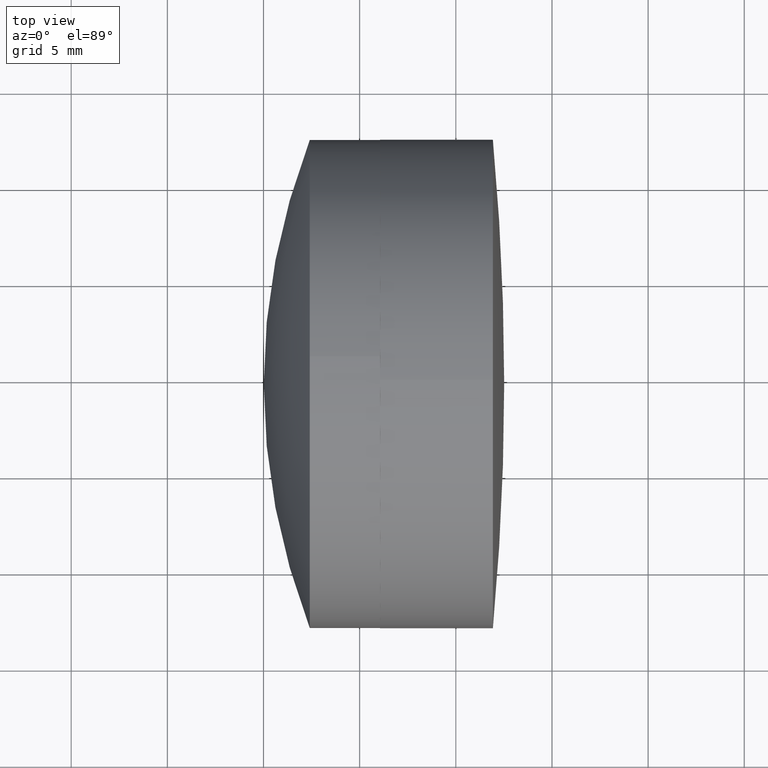
[diagram: clean part render]
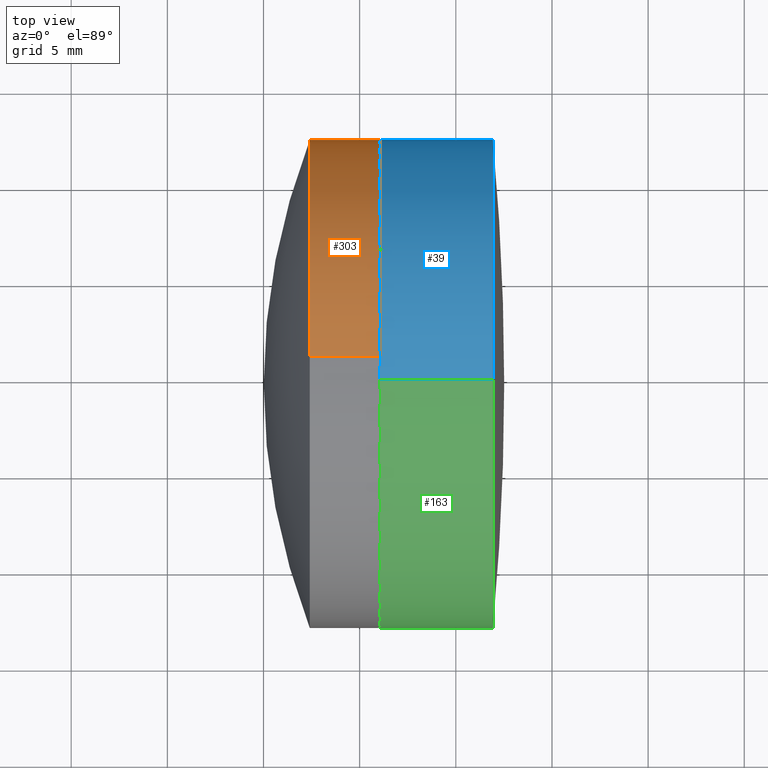
[diagram: same view with three faces highlighted in distinct colors, each labeled with its STEP entity id]
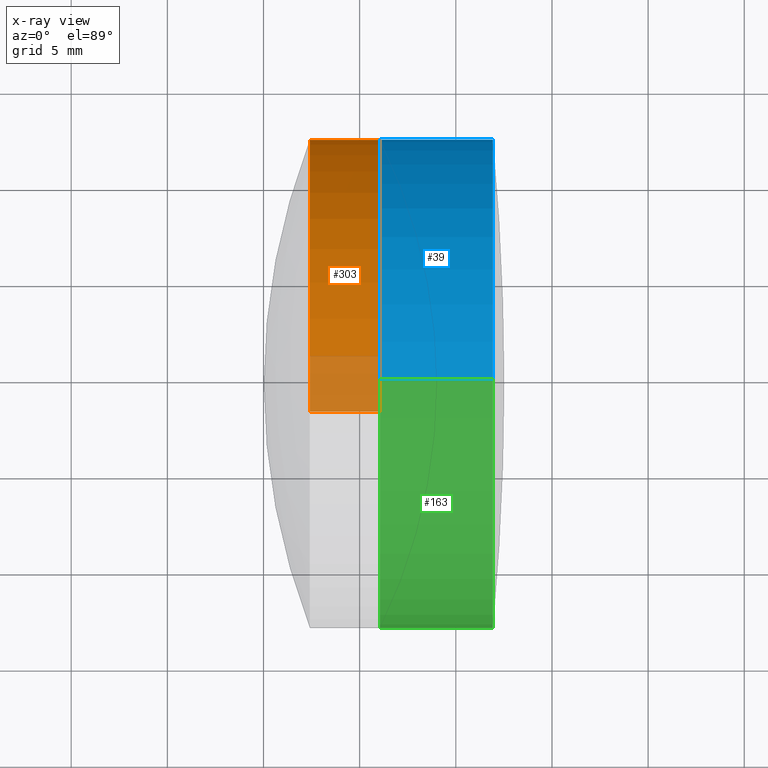
[diagram: x-ray of the same camera — body ghosted, the three highlighted faces saturated]
A machine part, top view with three faces highlighted in distinct colors.
The next image is the same camera in x-ray (body ghosted, the three faces saturated) — at least one of them is partly hidden behind the body in this view.
Their STEP definitions:

[orange] entity #303 — the highlighted cylindrical surface (partial cylindrical patch) has radius 12.7 mm, axis along (-1, 0, 0).
#1 = DIRECTION ( 'NONE',  ( -1.000000000000000000, 2.569559148790645509E-17, 4.163336342344337027E-17 ) ) ;
#2 = CARTESIAN_POINT ( 'NONE',  ( -77.59359883042631623, 28.48110664956988103, -12.64106487517395472 ) ) ;
#4 = CARTESIAN_POINT ( 'NONE',  ( -79.98416275664021668, 28.48110664956988103, -12.64106487517395649 ) ) ;
#9 = FACE_OUTER_BOUND ( 'NONE', #365, .T. ) ;
#10 = VERTEX_POINT ( 'NONE', #410 ) ;
#38 = DIRECTION ( 'NONE',  ( -1.000000000000000000, 2.569559148790645509E-17, 4.163336342344337027E-17 ) ) ;
#53 = AXIS2_PLACEMENT_3D ( 'NONE', #104, #114, #244 ) ;
#58 = ORIENTED_EDGE ( 'NONE', *, *, #427, .T. ) ;
#62 = LINE ( 'NONE', #4, #445 ) ;
#69 = LINE ( 'NONE', #317, #294 ) ;
#72 = AXIS2_PLACEMENT_3D ( 'NONE', #313, #346, #382 ) ;
#79 = ORIENTED_EDGE ( 'NONE', *, *, #399, .F. ) ;
#85 = VERTEX_POINT ( 'NONE', #168 ) ;
#101 = VERTEX_POINT ( 'NONE', #304 ) ;
#104 = CARTESIAN_POINT ( 'NONE',  ( -77.59359883042631623, 29.70318636122673084, 5.294805767452579913E-16 ) ) ;
#106 = DIRECTION ( 'NONE',  ( -1.000000000000000000, 2.569559148790645509E-17, 4.163336342344337027E-17 ) ) ;
#114 = DIRECTION ( 'NONE',  ( -1.000000000000000000, 2.569559148790645509E-17, 4.163336342344337027E-17 ) ) ;
#117 = DIRECTION ( 'NONE',  ( 0.000000000000000000, 0.09622674894935845380, 0.9953594389900752848 ) ) ;
#126 = CIRCLE ( 'NONE', #53, 12.70000000000000107 ) ;
#138 = CARTESIAN_POINT ( 'NONE',  ( -73.93899473471948625, 29.70318636122673084, 3.773271162598914149E-16 ) ) ;
#168 = CARTESIAN_POINT ( 'NONE',  ( -73.93899473471948625, 30.92526607288358420, 12.64106487517395472 ) ) ;
#187 = AXIS2_PLACEMENT_3D ( 'NONE', #138, #357, #215 ) ;
#199 = ORIENTED_EDGE ( 'NONE', *, *, #430, .F. ) ;
#208 = CIRCLE ( 'NONE', #335, 12.70000000000000107 ) ;
#210 = VERTEX_POINT ( 'NONE', #2 ) ;
#211 = ORIENTED_EDGE ( 'NONE', *, *, #213, .F. ) ;
#213 = EDGE_CURVE ( 'NONE', #101, #210, #208, .T. ) ;
#215 = DIRECTION ( 'NONE',  ( 0.000000000000000000, 0.09622674894935845380, 0.9953594389900752848 ) ) ;
#244 = DIRECTION ( 'NONE',  ( 0.000000000000000000, 0.09622674894935845380, 0.9953594389900752848 ) ) ;
#251 = CARTESIAN_POINT ( 'NONE',  ( -77.59359883042631623, 29.70318636122673084, 5.294805767452579913E-16 ) ) ;
#253 = DIRECTION ( 'NONE',  ( 0.000000000000000000, 0.09622674894935845380, 0.9953594389900752848 ) ) ;
#267 = ORIENTED_EDGE ( 'NONE', *, *, #307, .T. ) ;
#271 = EDGE_CURVE ( 'NONE', #10, #210, #62, .T. ) ;
#294 = VECTOR ( 'NONE', #1, 1000.000000000000000 ) ;
#303 = ADVANCED_FACE ( 'NONE', ( #9 ), #416, .T. ) ;
#304 = CARTESIAN_POINT ( 'NONE',  ( -77.59359883042631623, 42.34425123640058075, -1.222079711656842482 ) ) ;
#305 = AXIS2_PLACEMENT_3D ( 'NONE', #379, #106, #253 ) ;
#307 = EDGE_CURVE ( 'NONE', #85, #428, #330, .T. ) ;
#310 = CARTESIAN_POINT ( 'NONE',  ( -77.59359883042631623, 30.92526607288358420, 12.64106487517395472 ) ) ;
#313 = CARTESIAN_POINT ( 'NONE',  ( -79.98416275664021668, 29.70318636122673084, 6.290077934722955622E-16 ) ) ;
#317 = CARTESIAN_POINT ( 'NONE',  ( -79.98416275664021668, 30.92526607288358420, 12.64106487517395649 ) ) ;
#330 = CIRCLE ( 'NONE', #187, 12.70000000000000107 ) ;
#335 = AXIS2_PLACEMENT_3D ( 'NONE', #251, #359, #117 ) ;
#336 = CIRCLE ( 'NONE', #305, 12.70000000000000107 ) ;
#345 = VERTEX_POINT ( 'NONE', #310 ) ;
#346 = DIRECTION ( 'NONE',  ( -1.000000000000000000, 2.569559148790645509E-17, 4.163336342344337027E-17 ) ) ;
#357 = DIRECTION ( 'NONE',  ( -1.000000000000000000, 2.569559148790645509E-17, 4.163336342344337027E-17 ) ) ;
#359 = DIRECTION ( 'NONE',  ( -1.000000000000000000, 2.569559148790645509E-17, 4.163336342344337027E-17 ) ) ;
#365 = EDGE_LOOP ( 'NONE', ( #58, #432, #211, #79, #199, #267 ) ) ;
#377 = CARTESIAN_POINT ( 'NONE',  ( -73.93899473471948625, 42.34425123640068733, -1.222079711656854251 ) ) ;
#379 = CARTESIAN_POINT ( 'NONE',  ( -73.93899473471948625, 29.70318636122673084, 3.773271162598914149E-16 ) ) ;
#382 = DIRECTION ( 'NONE',  ( 0.000000000000000000, 0.09622674894935845380, 0.9953594389900752848 ) ) ;
#399 = EDGE_CURVE ( 'NONE', #345, #101, #126, .T. ) ;
#410 = CARTESIAN_POINT ( 'NONE',  ( -73.93899473471948625, 28.48110664956988103, -12.64106487517395472 ) ) ;
#416 = CYLINDRICAL_SURFACE ( 'NONE', #72, 12.70000000000000107 ) ;
#427 = EDGE_CURVE ( 'NONE', #428, #10, #336, .T. ) ;
#428 = VERTEX_POINT ( 'NONE', #377 ) ;
#430 = EDGE_CURVE ( 'NONE', #85, #345, #69, .T. ) ;
#432 = ORIENTED_EDGE ( 'NONE', *, *, #271, .T. ) ;
#445 = VECTOR ( 'NONE', #38, 1000.000000000000000 ) ;

[blue] entity #39 — the highlighted cylindrical surface (partial cylindrical patch) has radius 12.7 mm, axis along (-1, -0, -0).
#6 = DIRECTION ( 'NONE',  ( -1.000000000000000000, -0.000000000000000000, -0.000000000000000000 ) ) ;
#8 = CARTESIAN_POINT ( 'NONE',  ( -70.98416275664025932, 29.70318636122672018, 12.69999999999999929 ) ) ;
#17 = EDGE_CURVE ( 'NONE', #338, #135, #186, .T. ) ;
#27 = AXIS2_PLACEMENT_3D ( 'NONE', #115, #152, #290 ) ;
#33 = CIRCLE ( 'NONE', #437, 12.69999999999999929 ) ;
#34 = CIRCLE ( 'NONE', #249, 12.69999999999999929 ) ;
#39 = ADVANCED_FACE ( 'NONE', ( #440 ), #66, .T. ) ;
#49 = ORIENTED_EDGE ( 'NONE', *, *, #17, .F. ) ;
#65 = EDGE_CURVE ( 'NONE', #135, #233, #33, .T. ) ;
#66 = CYLINDRICAL_SURFACE ( 'NONE', #71, 12.69999999999999929 ) ;
#71 = AXIS2_PLACEMENT_3D ( 'NONE', #174, #371, #309 ) ;
#88 = CIRCLE ( 'NONE', #27, 12.69999999999999929 ) ;
#105 = CARTESIAN_POINT ( 'NONE',  ( -73.93899473471948625, 29.70318636122672018, 0.000000000000000000 ) ) ;
#109 = CARTESIAN_POINT ( 'NONE',  ( -73.93899473471948625, 29.70318636122672018, -12.69999999999999929 ) ) ;
#115 = CARTESIAN_POINT ( 'NONE',  ( -68.07179933319122256, 29.70318636122672018, 0.000000000000000000 ) ) ;
#128 = VERTEX_POINT ( 'NONE', #131 ) ;
#131 = CARTESIAN_POINT ( 'NONE',  ( -68.07179933319122256, 29.70318636122672018, 12.69999999999999929 ) ) ;
#135 = VERTEX_POINT ( 'NONE', #353 ) ;
#147 = CARTESIAN_POINT ( 'NONE',  ( -68.07179933319122256, 29.70318636122672018, 0.000000000000000000 ) ) ;
#148 = EDGE_CURVE ( 'NONE', #298, #233, #322, .T. ) ;
#152 = DIRECTION ( 'NONE',  ( -1.000000000000000000, -0.000000000000000000, -0.000000000000000000 ) ) ;
#159 = EDGE_CURVE ( 'NONE', #128, #338, #390, .T. ) ;
#174 = CARTESIAN_POINT ( 'NONE',  ( -70.98416275664025932, 29.70318636122672018, 0.000000000000000000 ) ) ;
#178 = EDGE_CURVE ( 'NONE', #366, #298, #88, .T. ) ;
#183 = DIRECTION ( 'NONE',  ( -1.000000000000000000, -0.000000000000000000, -0.000000000000000000 ) ) ;
#186 = CIRCLE ( 'NONE', #312, 12.69999999999999929 ) ;
#223 = CARTESIAN_POINT ( 'NONE',  ( -70.98416275664025932, 29.70318636122672018, -12.69999999999999929 ) ) ;
#229 = VECTOR ( 'NONE', #415, 1000.000000000000000 ) ;
#231 = ORIENTED_EDGE ( 'NONE', *, *, #159, .F. ) ;
#233 = VERTEX_POINT ( 'NONE', #109 ) ;
#249 = AXIS2_PLACEMENT_3D ( 'NONE', #147, #183, #320 ) ;
#250 = CARTESIAN_POINT ( 'NONE',  ( -68.07179933319123677, 42.40318636122695750, 0.000000000000000000 ) ) ;
#261 = ORIENTED_EDGE ( 'NONE', *, *, #178, .T. ) ;
#274 = DIRECTION ( 'NONE',  ( 0.000000000000000000, 0.000000000000000000, 1.000000000000000000 ) ) ;
#290 = DIRECTION ( 'NONE',  ( 0.000000000000000000, 0.000000000000000000, 1.000000000000000000 ) ) ;
#298 = VERTEX_POINT ( 'NONE', #326 ) ;
#302 = ORIENTED_EDGE ( 'NONE', *, *, #65, .F. ) ;
#309 = DIRECTION ( 'NONE',  ( 0.000000000000000000, 0.000000000000000000, 1.000000000000000000 ) ) ;
#311 = DIRECTION ( 'NONE',  ( 0.000000000000000000, 0.000000000000000000, 1.000000000000000000 ) ) ;
#312 = AXIS2_PLACEMENT_3D ( 'NONE', #376, #441, #311 ) ;
#320 = DIRECTION ( 'NONE',  ( 0.000000000000000000, 0.000000000000000000, 1.000000000000000000 ) ) ;
#322 = LINE ( 'NONE', #223, #229 ) ;
#326 = CARTESIAN_POINT ( 'NONE',  ( -68.07179933319122256, 29.70318636122672018, -12.69999999999999929 ) ) ;
#332 = EDGE_LOOP ( 'NONE', ( #261, #397, #302, #49, #231, #334 ) ) ;
#334 = ORIENTED_EDGE ( 'NONE', *, *, #356, .T. ) ;
#338 = VERTEX_POINT ( 'NONE', #409 ) ;
#348 = VECTOR ( 'NONE', #6, 1000.000000000000000 ) ;
#353 = CARTESIAN_POINT ( 'NONE',  ( -73.93899473471948625, 42.40318636122670881, 0.000000000000000000 ) ) ;
#356 = EDGE_CURVE ( 'NONE', #128, #366, #34, .T. ) ;
#366 = VERTEX_POINT ( 'NONE', #250 ) ;
#371 = DIRECTION ( 'NONE',  ( -1.000000000000000000, -0.000000000000000000, -0.000000000000000000 ) ) ;
#376 = CARTESIAN_POINT ( 'NONE',  ( -73.93899473471948625, 29.70318636122672018, 0.000000000000000000 ) ) ;
#390 = LINE ( 'NONE', #8, #348 ) ;
#397 = ORIENTED_EDGE ( 'NONE', *, *, #148, .T. ) ;
#409 = CARTESIAN_POINT ( 'NONE',  ( -73.93899473471948625, 29.70318636122672018, 12.69999999999999929 ) ) ;
#415 = DIRECTION ( 'NONE',  ( -1.000000000000000000, -0.000000000000000000, -0.000000000000000000 ) ) ;
#437 = AXIS2_PLACEMENT_3D ( 'NONE', #105, #443, #274 ) ;
#440 = FACE_OUTER_BOUND ( 'NONE', #332, .T. ) ;
#441 = DIRECTION ( 'NONE',  ( -1.000000000000000000, -0.000000000000000000, -0.000000000000000000 ) ) ;
#443 = DIRECTION ( 'NONE',  ( -1.000000000000000000, -0.000000000000000000, -0.000000000000000000 ) ) ;

[green] entity #163 — the highlighted cylindrical surface (partial cylindrical patch) has radius 12.7 mm, axis along (-1, -0, -0).
#6 = DIRECTION ( 'NONE',  ( -1.000000000000000000, -0.000000000000000000, -0.000000000000000000 ) ) ;
#8 = CARTESIAN_POINT ( 'NONE',  ( -70.98416275664025932, 29.70318636122672018, 12.69999999999999929 ) ) ;
#18 = EDGE_LOOP ( 'NONE', ( #266, #193, #234, #389, #378, #242 ) ) ;
#36 = DIRECTION ( 'NONE',  ( 0.000000000000000000, 0.000000000000000000, 1.000000000000000000 ) ) ;
#47 = DIRECTION ( 'NONE',  ( 0.000000000000000000, 0.000000000000000000, 1.000000000000000000 ) ) ;
#68 = DIRECTION ( 'NONE',  ( -1.000000000000000000, -0.000000000000000000, -0.000000000000000000 ) ) ;
#70 = CARTESIAN_POINT ( 'NONE',  ( -73.93899473471948625, 29.70318636122672018, 0.000000000000000000 ) ) ;
#102 = AXIS2_PLACEMENT_3D ( 'NONE', #423, #149, #36 ) ;
#109 = CARTESIAN_POINT ( 'NONE',  ( -73.93899473471948625, 29.70318636122672018, -12.69999999999999929 ) ) ;
#116 = EDGE_CURVE ( 'NONE', #368, #128, #247, .T. ) ;
#128 = VERTEX_POINT ( 'NONE', #131 ) ;
#131 = CARTESIAN_POINT ( 'NONE',  ( -68.07179933319122256, 29.70318636122672018, 12.69999999999999929 ) ) ;
#148 = EDGE_CURVE ( 'NONE', #298, #233, #322, .T. ) ;
#149 = DIRECTION ( 'NONE',  ( -1.000000000000000000, -0.000000000000000000, -0.000000000000000000 ) ) ;
#154 = DIRECTION ( 'NONE',  ( 0.000000000000000000, 0.000000000000000000, 1.000000000000000000 ) ) ;
#159 = EDGE_CURVE ( 'NONE', #128, #338, #390, .T. ) ;
#163 = ADVANCED_FACE ( 'NONE', ( #279 ), #350, .T. ) ;
#193 = ORIENTED_EDGE ( 'NONE', *, *, #194, .T. ) ;
#194 = EDGE_CURVE ( 'NONE', #298, #368, #342, .T. ) ;
#222 = AXIS2_PLACEMENT_3D ( 'NONE', #70, #325, #316 ) ;
#223 = CARTESIAN_POINT ( 'NONE',  ( -70.98416275664025932, 29.70318636122672018, -12.69999999999999929 ) ) ;
#229 = VECTOR ( 'NONE', #415, 1000.000000000000000 ) ;
#232 = EDGE_CURVE ( 'NONE', #431, #338, #408, .T. ) ;
#233 = VERTEX_POINT ( 'NONE', #109 ) ;
#234 = ORIENTED_EDGE ( 'NONE', *, *, #116, .T. ) ;
#242 = ORIENTED_EDGE ( 'NONE', *, *, #291, .F. ) ;
#247 = CIRCLE ( 'NONE', #446, 12.69999999999999929 ) ;
#258 = AXIS2_PLACEMENT_3D ( 'NONE', #355, #426, #154 ) ;
#266 = ORIENTED_EDGE ( 'NONE', *, *, #148, .F. ) ;
#279 = FACE_OUTER_BOUND ( 'NONE', #18, .T. ) ;
#287 = CARTESIAN_POINT ( 'NONE',  ( -68.07179933319123677, 17.00318636122648996, -1.555301434917167226E-15 ) ) ;
#291 = EDGE_CURVE ( 'NONE', #233, #431, #370, .T. ) ;
#298 = VERTEX_POINT ( 'NONE', #326 ) ;
#316 = DIRECTION ( 'NONE',  ( 0.000000000000000000, 0.000000000000000000, 1.000000000000000000 ) ) ;
#322 = LINE ( 'NONE', #223, #229 ) ;
#325 = DIRECTION ( 'NONE',  ( -1.000000000000000000, -0.000000000000000000, -0.000000000000000000 ) ) ;
#326 = CARTESIAN_POINT ( 'NONE',  ( -68.07179933319122256, 29.70318636122672018, -12.69999999999999929 ) ) ;
#338 = VERTEX_POINT ( 'NONE', #409 ) ;
#342 = CIRCLE ( 'NONE', #102, 12.69999999999999929 ) ;
#348 = VECTOR ( 'NONE', #6, 1000.000000000000000 ) ;
#350 = CYLINDRICAL_SURFACE ( 'NONE', #403, 12.69999999999999929 ) ;
#355 = CARTESIAN_POINT ( 'NONE',  ( -73.93899473471948625, 29.70318636122672018, 0.000000000000000000 ) ) ;
#368 = VERTEX_POINT ( 'NONE', #287 ) ;
#370 = CIRCLE ( 'NONE', #258, 12.69999999999999929 ) ;
#373 = DIRECTION ( 'NONE',  ( 0.000000000000000000, 0.000000000000000000, 1.000000000000000000 ) ) ;
#378 = ORIENTED_EDGE ( 'NONE', *, *, #232, .F. ) ;
#381 = CARTESIAN_POINT ( 'NONE',  ( -70.98416275664025932, 29.70318636122672018, 0.000000000000000000 ) ) ;
#385 = CARTESIAN_POINT ( 'NONE',  ( -73.93899473471948625, 17.00318636122673155, -1.555301434917137447E-15 ) ) ;
#389 = ORIENTED_EDGE ( 'NONE', *, *, #159, .T. ) ;
#390 = LINE ( 'NONE', #8, #348 ) ;
#403 = AXIS2_PLACEMENT_3D ( 'NONE', #381, #418, #47 ) ;
#408 = CIRCLE ( 'NONE', #222, 12.69999999999999929 ) ;
#409 = CARTESIAN_POINT ( 'NONE',  ( -73.93899473471948625, 29.70318636122672018, 12.69999999999999929 ) ) ;
#415 = DIRECTION ( 'NONE',  ( -1.000000000000000000, -0.000000000000000000, -0.000000000000000000 ) ) ;
#418 = DIRECTION ( 'NONE',  ( -1.000000000000000000, -0.000000000000000000, -0.000000000000000000 ) ) ;
#423 = CARTESIAN_POINT ( 'NONE',  ( -68.07179933319122256, 29.70318636122672018, 0.000000000000000000 ) ) ;
#426 = DIRECTION ( 'NONE',  ( -1.000000000000000000, -0.000000000000000000, -0.000000000000000000 ) ) ;
#431 = VERTEX_POINT ( 'NONE', #385 ) ;
#434 = CARTESIAN_POINT ( 'NONE',  ( -68.07179933319122256, 29.70318636122672018, 0.000000000000000000 ) ) ;
#446 = AXIS2_PLACEMENT_3D ( 'NONE', #434, #68, #373 ) ;